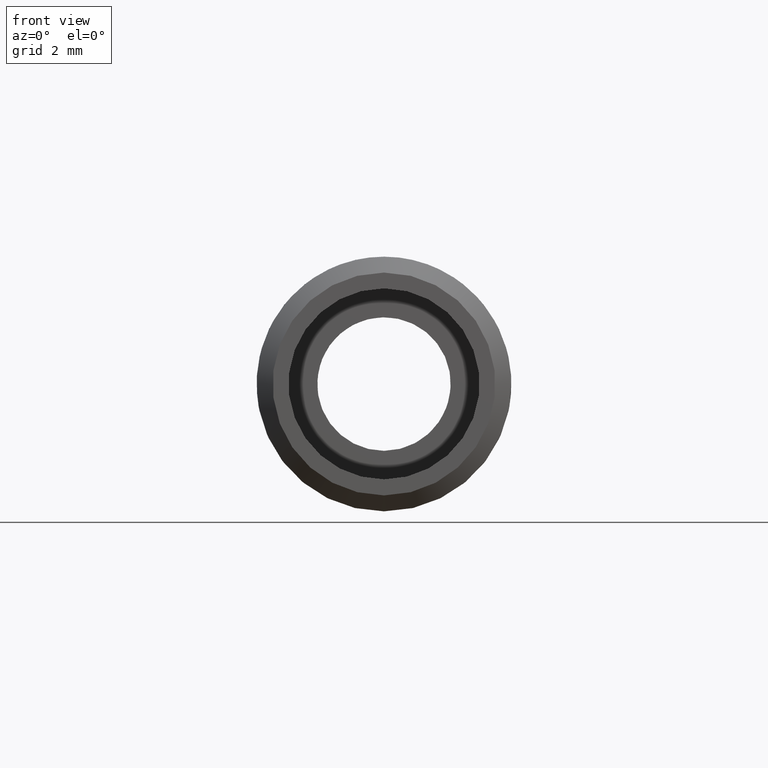
[diagram: clean part render]
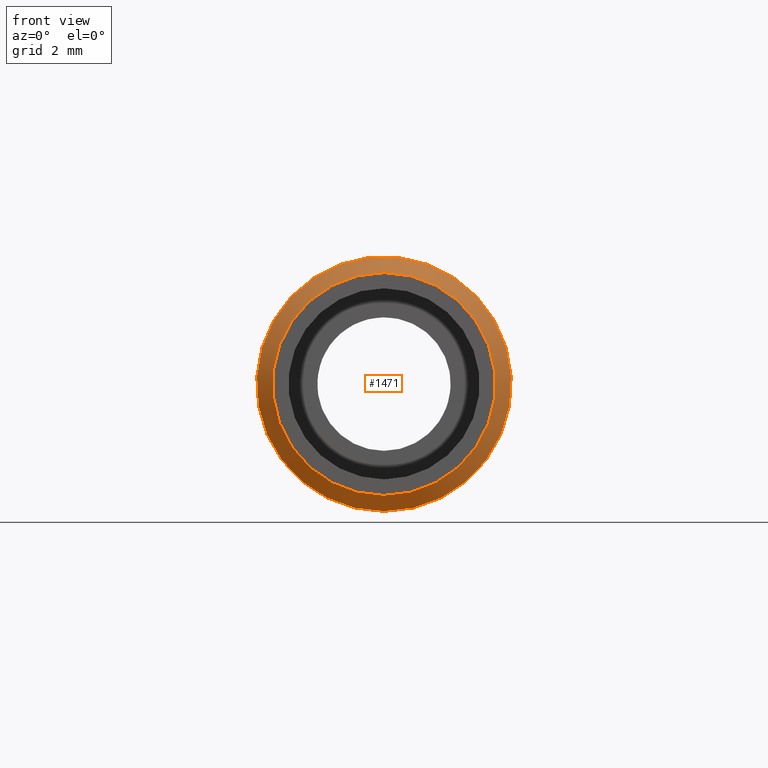
[diagram: same view with one face highlighted and labeled with its STEP entity id]
A machine part, front view. The second image highlights one B-rep face of the part: STEP entity #1471.
In plain terms, the highlighted conical surface has half-angle 45 deg.
Its self-contained STEP definition (entity closure, byte-faithful):
#1471 = ADVANCED_FACE ( 'NONE', ( #13771, #15010 ), #7169, .T. ) ;
#1622 = DIRECTION ( 'NONE',  ( 0.0000000000000000000, 1.000000000000000000, 0.0000000000000000000 ) ) ;
#1797 = VERTEX_POINT ( 'NONE', #4557 ) ;
#2773 = AXIS2_PLACEMENT_3D ( 'NONE', #10285, #7556, #11488 ) ;
#2850 = EDGE_CURVE ( 'NONE', #10652, #10652, #16361, .T. ) ;
#2880 = CARTESIAN_POINT ( 'NONE',  ( 0.0000000000000000000, 0.5000000000000017800, 0.0000000000000000000 ) ) ;
#3410 = ORIENTED_EDGE ( 'NONE', *, *, #2850, .F. ) ;
#4557 = CARTESIAN_POINT ( 'NONE',  ( 0.0000000000000000000, -4.742614004466836000E-016, -3.500000000000003100 ) ) ;
#5479 = CARTESIAN_POINT ( 'NONE',  ( 0.0000000000000000000, -4.742614004466836000E-016, 0.0000000000000000000 ) ) ;
#6000 = EDGE_CURVE ( 'NONE', #1797, #1797, #11156, .T. ) ;
#7169 = CONICAL_SURFACE ( 'NONE', #2773, 3.500000000000003100, 0.7853981633974447300 ) ;
#7542 = AXIS2_PLACEMENT_3D ( 'NONE', #5479, #13600, #16047 ) ;
#7556 = DIRECTION ( 'NONE',  ( 0.0000000000000000000, 1.000000000000000000, 0.0000000000000000000 ) ) ;
#8384 = EDGE_LOOP ( 'NONE', ( #3410 ) ) ;
#10285 = CARTESIAN_POINT ( 'NONE',  ( 0.0000000000000000000, -4.742614004466836000E-016, 0.0000000000000000000 ) ) ;
#10652 = VERTEX_POINT ( 'NONE', #13832 ) ;
#11156 = CIRCLE ( 'NONE', #7542, 3.500000000000003100 ) ;
#11374 = EDGE_LOOP ( 'NONE', ( #12579 ) ) ;
#11488 = DIRECTION ( 'NONE',  ( 0.0000000000000000000, 0.0000000000000000000, 1.000000000000000000 ) ) ;
#12579 = ORIENTED_EDGE ( 'NONE', *, *, #6000, .F. ) ;
#13600 = DIRECTION ( 'NONE',  ( -0.0000000000000000000, -1.000000000000000000, -0.0000000000000000000 ) ) ;
#13771 = FACE_OUTER_BOUND ( 'NONE', #8384, .T. ) ;
#13832 = CARTESIAN_POINT ( 'NONE',  ( 0.0000000000000000000, 0.5000000000000017800, -4.000000000000001800 ) ) ;
#14275 = AXIS2_PLACEMENT_3D ( 'NONE', #2880, #1622, #16027 ) ;
#15010 = FACE_BOUND ( 'NONE', #11374, .T. ) ;
#16027 = DIRECTION ( 'NONE',  ( 0.0000000000000000000, 0.0000000000000000000, -1.000000000000000000 ) ) ;
#16047 = DIRECTION ( 'NONE',  ( 0.0000000000000000000, 0.0000000000000000000, -1.000000000000000000 ) ) ;
#16361 = CIRCLE ( 'NONE', #14275, 4.000000000000001800 ) ;